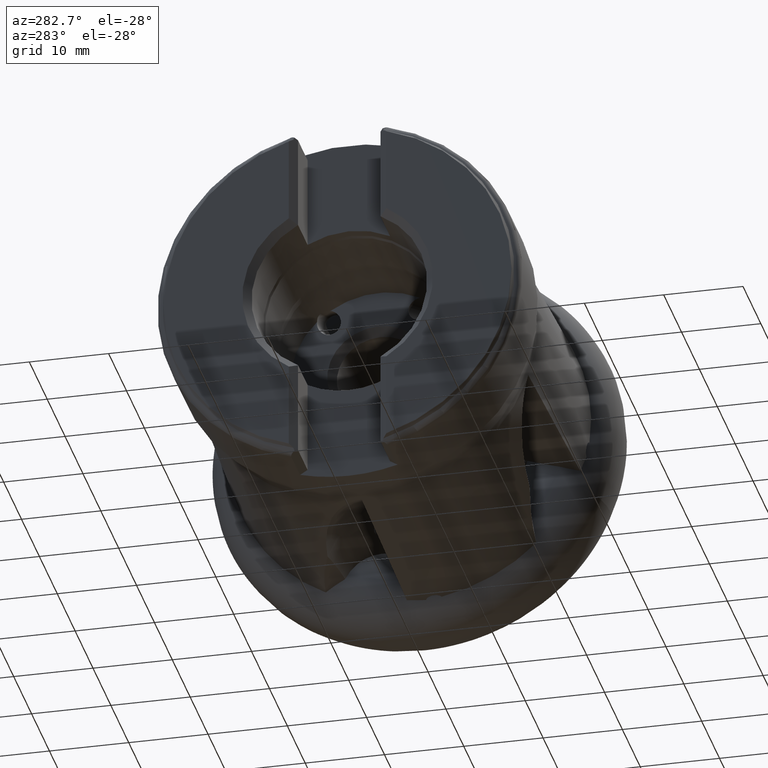
[diagram: clean part render]
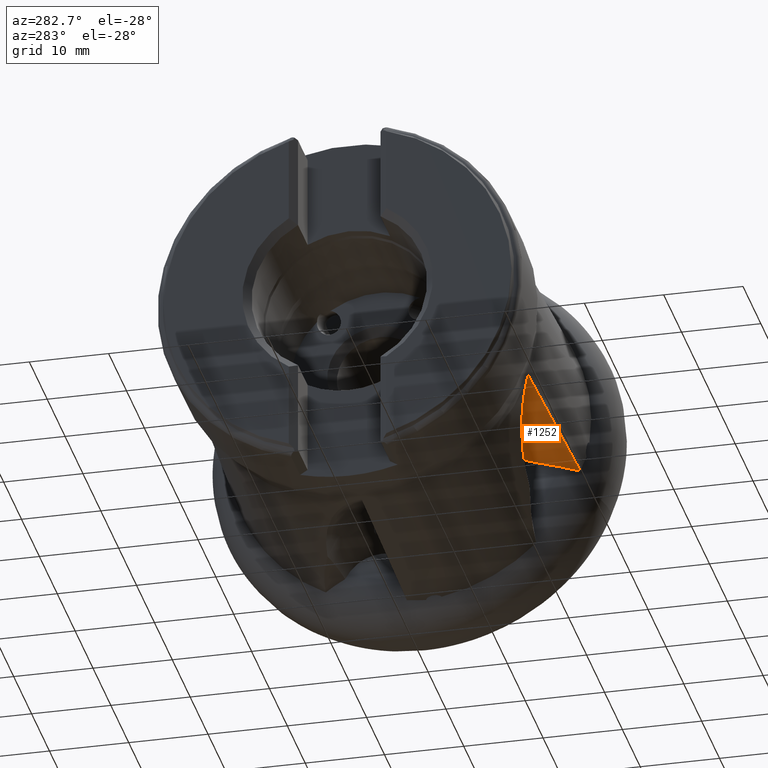
[diagram: same view with one face highlighted and labeled with its STEP entity id]
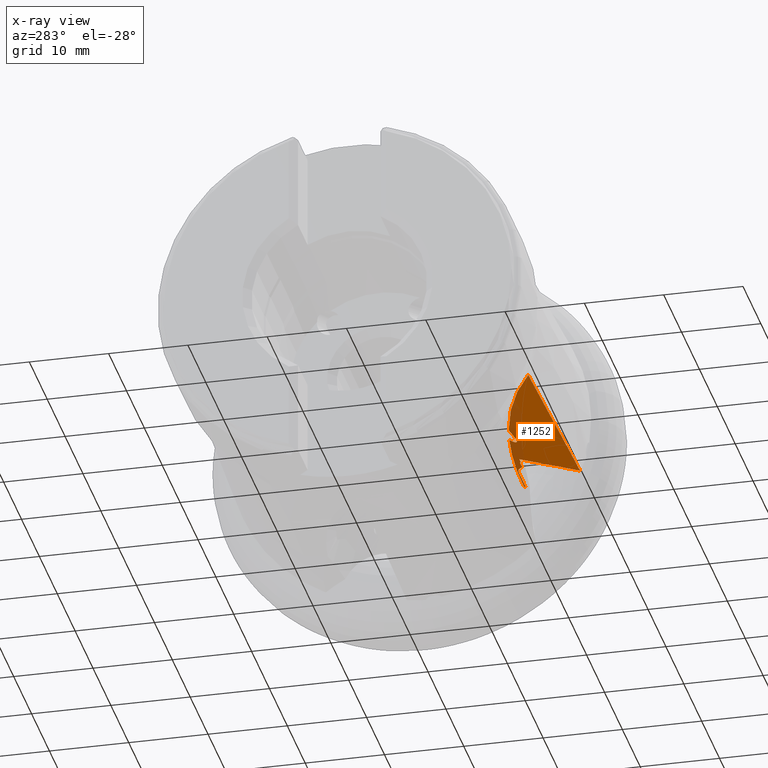
[diagram: x-ray of the same camera — body ghosted, the highlighted face saturated]
A machine part, auxiliary view. The second image highlights one B-rep face of the part: STEP entity #1252.
The next image is the same camera in x-ray: the body ghosted, the highlighted face saturated — about 19% of this face is hidden behind the body in this view.
In plain terms, the highlighted planar face has unit normal (0, -0.309, 0.9511).
Its self-contained STEP definition (entity closure, byte-faithful):
#83 = AXIS2_PLACEMENT_3D ( 'NONE', #3136, #3152, #3166 ) ;
#127 = EDGE_CURVE ( 'NONE', #997, #4021, #1234, .T. ) ;
#192 = DIRECTION ( 'NONE',  ( 0.0000000000000000000, 0.9510565162951544200, 0.3090169943749447300 ) ) ;
#213 = CARTESIAN_POINT ( 'NONE',  ( -35.83853494373372000, -20.74103951976879000, -7.044096305347010500 ) ) ;
#280 = B_SPLINE_CURVE_WITH_KNOTS ( 'NONE', 3,
 ( #1327, #213, #2128, #2536 ),
 .UNSPECIFIED., .F., .F.,
 ( 4, 4 ),
 ( 1.979229095147628700E-007, 0.0002099995249670280900 ),
 .UNSPECIFIED. ) ;
#413 = ORIENTED_EDGE ( 'NONE', *, *, #3888, .T. ) ;
#535 = EDGE_LOOP ( 'NONE', ( #4558, #4062, #3977, #1854, #3058, #413, #2996, #1271, #3106, #686, #3928, #3005, #4277, #4629 ) ) ;
#572 = CARTESIAN_POINT ( 'NONE',  ( -10.64580779713890400, -18.60350872977790700, -6.349570450374695700 ) ) ;
#575 = VECTOR ( 'NONE', #1533, 1000.000000000000000 ) ;
#589 = VERTEX_POINT ( 'NONE', #1593 ) ;
#623 = CARTESIAN_POINT ( 'NONE',  ( -10.57235845334866700, -18.01231156369311700, -6.157478846756673900 ) ) ;
#686 = ORIENTED_EDGE ( 'NONE', *, *, #1506, .F. ) ;
#713 = EDGE_CURVE ( 'NONE', #4021, #4690, #2551, .T. ) ;
#725 = EDGE_CURVE ( 'NONE', #5040, #1289, #280, .T. ) ;
#734 = CARTESIAN_POINT ( 'NONE',  ( -10.64610213823589800, -19.19799353527610100, -6.542730272792247200 ) ) ;
#769 = CARTESIAN_POINT ( 'NONE',  ( -9.709000000000005000, -13.90275003695947300, -4.822201363839954300 ) ) ;
#850 = VECTOR ( 'NONE', #2063, 1000.000000000000000 ) ;
#867 = CARTESIAN_POINT ( 'NONE',  ( -10.62139569681487200, -18.30735681074907000, -6.253344858805058400 ) ) ;
#897 = DIRECTION ( 'NONE',  ( 1.000000000000000000, 8.453402920542724100E-017, 2.746677109077078500E-017 ) ) ;
#997 = VERTEX_POINT ( 'NONE', #769 ) ;
#1012 = LINE ( 'NONE', #2076, #850 ) ;
#1035 = CARTESIAN_POINT ( 'NONE',  ( -18.55849438059708900, -14.35872196858502300, -4.970355625354455000 ) ) ;
#1081 = CARTESIAN_POINT ( 'NONE',  ( -10.57235845334866700, -23.91585197761027000, -8.075655404745303300 ) ) ;
#1107 = CARTESIAN_POINT ( 'NONE',  ( -10.62151339591062400, -19.49880954175733900, -6.640471318240121200 ) ) ;
#1159 = CARTESIAN_POINT ( 'NONE',  ( -6.600000000000001400, -12.92715470077001600, -4.505211223559035400 ) ) ;
#1225 = CARTESIAN_POINT ( 'NONE',  ( -18.55849438059708900, -14.35872196858502300, -4.970355625354455000 ) ) ;
#1234 = LINE ( 'NONE', #3584, #3103 ) ;
#1252 = ADVANCED_FACE ( 'NONE', ( #1759 ), #3113, .F. ) ;
#1269 = LINE ( 'NONE', #1081, #4306 ) ;
#1271 = ORIENTED_EDGE ( 'NONE', *, *, #3266, .T. ) ;
#1289 = VERTEX_POINT ( 'NONE', #3418 ) ;
#1294 = EDGE_CURVE ( 'NONE', #589, #2469, #1269, .T. ) ;
#1296 = CARTESIAN_POINT ( 'NONE',  ( -2.692034791123084400, -12.71724149629309300, -4.437006288925116900 ) ) ;
#1327 = CARTESIAN_POINT ( 'NONE',  ( -35.76786732149803100, -20.74338671203464600, -7.044858954345032800 ) ) ;
#1506 = EDGE_CURVE ( 'NONE', #5056, #3702, #1012, .T. ) ;
#1518 = LINE ( 'NONE', #3925, #1962 ) ;
#1533 = DIRECTION ( 'NONE',  ( 0.0000000000000000000, 0.9510565162951544200, 0.3090169943749447300 ) ) ;
#1566 = CARTESIAN_POINT ( 'NONE',  ( -2.692034791123084900, 13.48086322922930700, 4.075273940369406500 ) ) ;
#1593 = CARTESIAN_POINT ( 'NONE',  ( -10.57235845334866700, -21.58024101000344100, -7.316769398632255100 ) ) ;
#1597 = VERTEX_POINT ( 'NONE', #1296 ) ;
#1646 = CARTESIAN_POINT ( 'NONE',  ( -15.71470477606461100, -13.79321952081670400, -4.786612741806608000 ) ) ;
#1729 = AXIS2_PLACEMENT_3D ( 'NONE', #4103, #2320, #2300 ) ;
#1759 = FACE_OUTER_BOUND ( 'NONE', #535, .T. ) ;
#1766 = CIRCLE ( 'NONE', #3591, 2.113358453348663800 ) ;
#1854 = ORIENTED_EDGE ( 'NONE', *, *, #4406, .T. ) ;
#1953 = DIRECTION ( 'NONE',  ( 1.000000000000000000, -0.0000000000000000000, -0.0000000000000000000 ) ) ;
#1962 = VECTOR ( 'NONE', #3747, 1000.000000000000100 ) ;
#2048 = CARTESIAN_POINT ( 'NONE',  ( -10.57235845334866700, -19.79455707906678100, -6.736565518224338700 ) ) ;
#2063 = DIRECTION ( 'NONE',  ( 1.000000000000000000, -1.695062975781345500E-016, -5.507593471865157300E-017 ) ) ;
#2076 = CARTESIAN_POINT ( 'NONE',  ( -6.600000000000001400, -12.92715470077001400, -4.505211223559037100 ) ) ;
#2087 = CARTESIAN_POINT ( 'NONE',  ( -9.709000000000005000, -13.90275003695946800, -4.822201363839950800 ) ) ;
#2128 = CARTESIAN_POINT ( 'NONE',  ( -35.90903092710619400, -20.74012491789764600, -7.043799133184864800 ) ) ;
#2300 = DIRECTION ( 'NONE',  ( 0.0000000000000000000, 0.9510565162951543100, 0.3090169943749446800 ) ) ;
#2320 = DIRECTION ( 'NONE',  ( -0.0000000000000000000, 0.3090169943749447900, -0.9510565162951546400 ) ) ;
#2358 = DIRECTION ( 'NONE',  ( -0.0000000000000000000, 0.3090169943749447900, -0.9510565162951546400 ) ) ;
#2372 = CARTESIAN_POINT ( 'NONE',  ( -35.76786732149803100, -20.74338671203464600, -7.044858954345032800 ) ) ;
#2410 = CARTESIAN_POINT ( 'NONE',  ( -27.36936440006683900, -21.02233908743713900, -7.135496075424257800 ) ) ;
#2459 = CARTESIAN_POINT ( 'NONE',  ( -18.97086144268002900, -21.30129048368610600, -7.226132878357216100 ) ) ;
#2469 = VERTEX_POINT ( 'NONE', #2048 ) ;
#2536 = CARTESIAN_POINT ( 'NONE',  ( -35.97935803596488600, -20.74061983367177900, -7.043959941067854800 ) ) ;
#2551 = LINE ( 'NONE', #2829, #3433 ) ;
#2563 = EDGE_CURVE ( 'NONE', #3540, #2469, #5064, .T. ) ;
#2583 = VECTOR ( 'NONE', #1953, 1000.000000000000000 ) ;
#2600 = CARTESIAN_POINT ( 'NONE',  ( -2.692034791123087500, -12.92715470077001600, -4.505211223559034500 ) ) ;
#2651 = LINE ( 'NONE', #2087, #2583 ) ;
#2724 = CARTESIAN_POINT ( 'NONE',  ( -10.57235845334866700, -21.58024101000344100, -7.316769398632255100 ) ) ;
#2725 = EDGE_CURVE ( 'NONE', #4541, #2851, #3788, .T. ) ;
#2757 = CARTESIAN_POINT ( 'NONE',  ( -14.64658534844031100, -14.88784232351621700, -5.142277250349346600 ) ) ;
#2829 = CARTESIAN_POINT ( 'NONE',  ( 9.807638226112162600, -13.74825738372576500, -4.772003657881040100 ) ) ;
#2851 = VERTEX_POINT ( 'NONE', #1646 ) ;
#2930 = DIRECTION ( 'NONE',  ( 0.0000000000000000000, 0.9510565162951545300, 0.3090169943749447300 ) ) ;
#2996 = ORIENTED_EDGE ( 'NONE', *, *, #2725, .T. ) ;
#3005 = ORIENTED_EDGE ( 'NONE', *, *, #713, .F. ) ;
#3006 = AXIS2_PLACEMENT_3D ( 'NONE', #3502, #2358, #3471 ) ;
#3048 = VERTEX_POINT ( 'NONE', #4838 ) ;
#3058 = ORIENTED_EDGE ( 'NONE', *, *, #725, .T. ) ;
#3103 = VECTOR ( 'NONE', #192, 1000.000000000000000 ) ;
#3106 = ORIENTED_EDGE ( 'NONE', *, *, #3723, .F. ) ;
#3113 = PLANE ( 'NONE',  #83 ) ;
#3136 = CARTESIAN_POINT ( 'NONE',  ( -41.72438130950721600, -24.15193391546417700, -8.152363076278867000 ) ) ;
#3152 = DIRECTION ( 'NONE',  ( 0.0000000000000000000, -0.3090169943749447300, 0.9510565162951545300 ) ) ;
#3166 = DIRECTION ( 'NONE',  ( 0.0000000000000000000, -0.9510565162951544200, -0.3090169943749446800 ) ) ;
#3254 = CARTESIAN_POINT ( 'NONE',  ( -15.71470477606461100, -13.79321952081670400, -4.786612741806608000 ) ) ;
#3266 = EDGE_CURVE ( 'NONE', #2851, #1597, #4173, .T. ) ;
#3418 = CARTESIAN_POINT ( 'NONE',  ( -35.97935803596488600, -20.74061983367177900, -7.043959941067854800 ) ) ;
#3432 = DIRECTION ( 'NONE',  ( 1.435621420673710100E-017, 0.9510565162951544200, 0.3090169943749446800 ) ) ;
#3433 = VECTOR ( 'NONE', #897, 1000.000000000000000 ) ;
#3471 = DIRECTION ( 'NONE',  ( 0.0000000000000000000, 0.9510565162951543100, 0.3090169943749446800 ) ) ;
#3502 = CARTESIAN_POINT ( 'NONE',  ( -3.435761457491776300, -76.39529842034733100, -25.12726120139033600 ) ) ;
#3513 = CARTESIAN_POINT ( 'NONE',  ( -10.57235845334866700, -19.79455707906678100, -6.736565518224338700 ) ) ;
#3540 = VERTEX_POINT ( 'NONE', #3838 ) ;
#3584 = CARTESIAN_POINT ( 'NONE',  ( -9.709000000000005000, -13.74825738372576600, -4.772003657881041900 ) ) ;
#3591 = AXIS2_PLACEMENT_3D ( 'NONE', #4408, #4417, #2930 ) ;
#3614 = CARTESIAN_POINT ( 'NONE',  ( -9.709000000000005000, -13.74825738372576600, -4.772003657881040100 ) ) ;
#3702 = VERTEX_POINT ( 'NONE', #2600 ) ;
#3723 = EDGE_CURVE ( 'NONE', #3702, #1597, #3728, .T. ) ;
#3728 = LINE ( 'NONE', #1566, #575 ) ;
#3747 = DIRECTION ( 'NONE',  ( 1.435621420673710100E-017, 0.9510565162951544200, 0.3090169943749446800 ) ) ;
#3788 =( BOUNDED_CURVE ( )  B_SPLINE_CURVE ( 3, ( #1035, #3887, #2757, #3254 ),
 .UNSPECIFIED., .F., .T. ) 
 B_SPLINE_CURVE_WITH_KNOTS ( ( 4, 4 ),
 ( 5.424819187799172900, 6.669170699853845400 ),
 .UNSPECIFIED. ) 
 CURVE ( )  GEOMETRIC_REPRESENTATION_ITEM ( )  RATIONAL_B_SPLINE_CURVE ( ( 1.000000000000000000, 0.8750748936617736000, 0.8750748936617736000, 1.000000000000000000 ) ) 
 REPRESENTATION_ITEM ( '' )  );
#3838 = CARTESIAN_POINT ( 'NONE',  ( -10.57235845334866700, -18.01231156369311700, -6.157478846756673900 ) ) ;
#3887 = CARTESIAN_POINT ( 'NONE',  ( -15.72984105037326900, -15.10325338980105900, -5.212268548571821600 ) ) ;
#3888 = EDGE_CURVE ( 'NONE', #1289, #4541, #4250, .T. ) ;
#3925 = CARTESIAN_POINT ( 'NONE',  ( -10.57235845334866700, -23.91585197761027000, -8.075655404745303300 ) ) ;
#3928 = ORIENTED_EDGE ( 'NONE', *, *, #5049, .F. ) ;
#3942 = B_SPLINE_CURVE_WITH_KNOTS ( 'NONE', 3,
 ( #2724, #2459, #2410, #2372 ),
 .UNSPECIFIED., .F., .F.,
 ( 4, 4 ),
 ( 0.0007921496765532197200, 0.02600301891049146300 ),
 .UNSPECIFIED. ) ;
#3974 = CARTESIAN_POINT ( 'NONE',  ( -35.76786732149803100, -20.74338671203464600, -7.044858954345032800 ) ) ;
#3977 = ORIENTED_EDGE ( 'NONE', *, *, #1294, .F. ) ;
#4021 = VERTEX_POINT ( 'NONE', #3614 ) ;
#4062 = ORIENTED_EDGE ( 'NONE', *, *, #2563, .T. ) ;
#4103 = CARTESIAN_POINT ( 'NONE',  ( -3.435761457491776300, -76.39529842034733100, -25.12726120139033600 ) ) ;
#4173 = CIRCLE ( 'NONE', #3006, 66.95920184201833100 ) ;
#4250 = CIRCLE ( 'NONE', #1729, 66.95920184201833100 ) ;
#4277 = ORIENTED_EDGE ( 'NONE', *, *, #127, .F. ) ;
#4306 = VECTOR ( 'NONE', #3432, 1000.000000000000100 ) ;
#4406 = EDGE_CURVE ( 'NONE', #589, #5040, #3942, .T. ) ;
#4408 = CARTESIAN_POINT ( 'NONE',  ( -6.600000000000001400, -14.93707802909471000, -5.158274900849724200 ) ) ;
#4417 = DIRECTION ( 'NONE',  ( 0.0000000000000000000, 0.3090169943749447300, -0.9510565162951544200 ) ) ;
#4541 = VERTEX_POINT ( 'NONE', #1225 ) ;
#4558 = ORIENTED_EDGE ( 'NONE', *, *, #5080, .F. ) ;
#4629 = ORIENTED_EDGE ( 'NONE', *, *, #4886, .F. ) ;
#4690 = VERTEX_POINT ( 'NONE', #5089 ) ;
#4838 = CARTESIAN_POINT ( 'NONE',  ( -10.57235845334866700, -13.90275003695947300, -4.822201363839952600 ) ) ;
#4886 = EDGE_CURVE ( 'NONE', #3048, #997, #2651, .T. ) ;
#5040 = VERTEX_POINT ( 'NONE', #3974 ) ;
#5049 = EDGE_CURVE ( 'NONE', #4690, #5056, #1766, .T. ) ;
#5056 = VERTEX_POINT ( 'NONE', #1159 ) ;
#5064 = B_SPLINE_CURVE_WITH_KNOTS ( 'NONE', 3,
 ( #623, #867, #572, #734, #1107, #3513 ),
 .UNSPECIFIED., .F., .F.,
 ( 4, 2, 4 ),
 ( 0.01042365277067501500, 0.01136025021328201900, 0.01229684765588902300 ),
 .UNSPECIFIED. ) ;
#5080 = EDGE_CURVE ( 'NONE', #3540, #3048, #1518, .T. ) ;
#5089 = CARTESIAN_POINT ( 'NONE',  ( -8.304049281077357800, -13.74825738372576600, -4.772003657881040100 ) ) ;